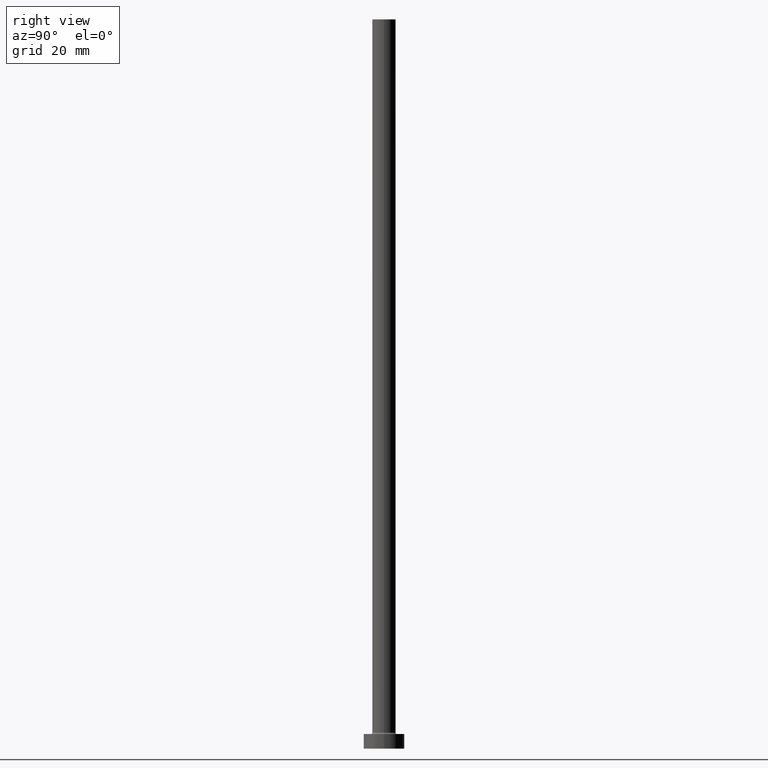
[diagram: clean part render]
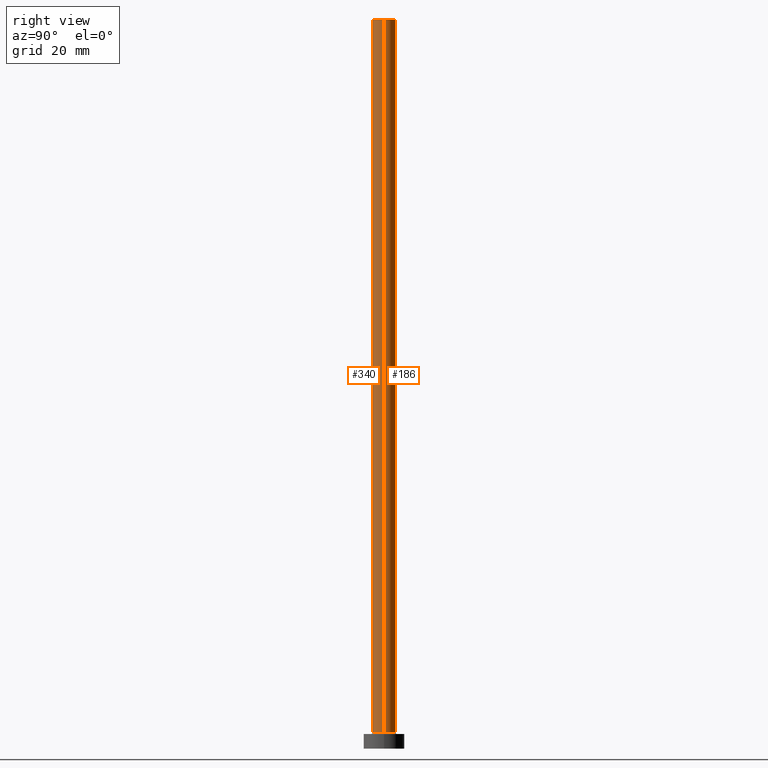
[diagram: same view with one multi-face feature highlighted, each face labeled with its STEP entity id]
A machine part, right view. The highlighted faces form ONE feature: a constant-radius fillet chain: 2 tangent blend faces with common blend radius 4 mm. The faces share edges in the B-rep.
Their STEP definitions:
[1] entity #340 (Cylinder):
#5 = VECTOR ( 'NONE', #163, 1000.000000000000000 ) ;
#12 = CIRCLE ( 'NONE', #436, 4.000000000000000000 ) ;
#21 = CARTESIAN_POINT ( 'NONE',  ( 4.000000000000000000, 4.898587196589412829E-16, 250.0000000000000000 ) ) ;
#22 = FACE_OUTER_BOUND ( 'NONE', #265, .T. ) ;
#65 = LINE ( 'NONE', #391, #243 ) ;
#67 = ORIENTED_EDGE ( 'NONE', *, *, #239, .F. ) ;
#87 = CARTESIAN_POINT ( 'NONE',  ( 0.000000000000000000, 0.000000000000000000, 250.0000000000000000 ) ) ;
#126 = DIRECTION ( 'NONE',  ( -1.000000000000000000, 0.000000000000000000, 0.000000000000000000 ) ) ;
#135 = AXIS2_PLACEMENT_3D ( 'NONE', #451, #165, #126 ) ;
#141 = VERTEX_POINT ( 'NONE', #276 ) ;
#163 = DIRECTION ( 'NONE',  ( -0.000000000000000000, -0.000000000000000000, -1.000000000000000000 ) ) ;
#165 = DIRECTION ( 'NONE',  ( -0.000000000000000000, -0.000000000000000000, -1.000000000000000000 ) ) ;
#177 = DIRECTION ( 'NONE',  ( -0.000000000000000000, -0.000000000000000000, -1.000000000000000000 ) ) ;
#183 = EDGE_CURVE ( 'NONE', #447, #284, #12, .T. ) ;
#184 = ORIENTED_EDGE ( 'NONE', *, *, #396, .T. ) ;
#193 = DIRECTION ( 'NONE',  ( 0.000000000000000000, 0.000000000000000000, 1.000000000000000000 ) ) ;
#196 = LINE ( 'NONE', #21, #5 ) ;
#205 = CARTESIAN_POINT ( 'NONE',  ( 4.000000000000000000, 4.898587196589412829E-16, 250.0000000000000000 ) ) ;
#239 = EDGE_CURVE ( 'NONE', #284, #417, #196, .T. ) ;
#242 = CIRCLE ( 'NONE', #303, 4.000000000000000000 ) ;
#243 = VECTOR ( 'NONE', #177, 1000.000000000000000 ) ;
#261 = EDGE_CURVE ( 'NONE', #141, #417, #242, .T. ) ;
#265 = EDGE_LOOP ( 'NONE', ( #67, #305, #184, #298 ) ) ;
#276 = CARTESIAN_POINT ( 'NONE',  ( -4.000000000000000000, 0.000000000000000000, 5.500000000000005329 ) ) ;
#278 = DIRECTION ( 'NONE',  ( 1.000000000000000000, 0.000000000000000000, 0.000000000000000000 ) ) ;
#281 = CARTESIAN_POINT ( 'NONE',  ( -4.000000000000000000, 0.000000000000000000, 250.0000000000000000 ) ) ;
#284 = VERTEX_POINT ( 'NONE', #205 ) ;
#298 = ORIENTED_EDGE ( 'NONE', *, *, #261, .T. ) ;
#303 = AXIS2_PLACEMENT_3D ( 'NONE', #443, #416, #381 ) ;
#305 = ORIENTED_EDGE ( 'NONE', *, *, #183, .F. ) ;
#340 = ADVANCED_FACE ( 'NONE', ( #22 ), #374, .T. ) ;
#368 = CARTESIAN_POINT ( 'NONE',  ( 4.000000000000000000, 4.898587196589412829E-16, 5.500000000000005329 ) ) ;
#374 = CYLINDRICAL_SURFACE ( 'NONE', #135, 4.000000000000000000 ) ;
#381 = DIRECTION ( 'NONE',  ( 1.000000000000000000, 0.000000000000000000, 0.000000000000000000 ) ) ;
#391 = CARTESIAN_POINT ( 'NONE',  ( -4.000000000000000000, 0.000000000000000000, 250.0000000000000000 ) ) ;
#396 = EDGE_CURVE ( 'NONE', #447, #141, #65, .T. ) ;
#416 = DIRECTION ( 'NONE',  ( 0.000000000000000000, 0.000000000000000000, 1.000000000000000000 ) ) ;
#417 = VERTEX_POINT ( 'NONE', #368 ) ;
#436 = AXIS2_PLACEMENT_3D ( 'NONE', #87, #193, #278 ) ;
#443 = CARTESIAN_POINT ( 'NONE',  ( 0.000000000000000000, 0.000000000000000000, 5.500000000000005329 ) ) ;
#447 = VERTEX_POINT ( 'NONE', #281 ) ;
#451 = CARTESIAN_POINT ( 'NONE',  ( 0.000000000000000000, 0.000000000000000000, 250.0000000000000000 ) ) ;
[2] entity #186 (Cylinder):
#5 = VECTOR ( 'NONE', #163, 1000.000000000000000 ) ;
#16 = EDGE_CURVE ( 'NONE', #417, #141, #400, .T. ) ;
#21 = CARTESIAN_POINT ( 'NONE',  ( 4.000000000000000000, 4.898587196589412829E-16, 250.0000000000000000 ) ) ;
#26 = AXIS2_PLACEMENT_3D ( 'NONE', #274, #63, #201 ) ;
#43 = CIRCLE ( 'NONE', #260, 4.000000000000000000 ) ;
#63 = DIRECTION ( 'NONE',  ( -0.000000000000000000, -0.000000000000000000, -1.000000000000000000 ) ) ;
#65 = LINE ( 'NONE', #391, #243 ) ;
#100 = DIRECTION ( 'NONE',  ( 1.000000000000000000, 0.000000000000000000, 0.000000000000000000 ) ) ;
#103 = DIRECTION ( 'NONE',  ( 0.000000000000000000, 0.000000000000000000, 1.000000000000000000 ) ) ;
#141 = VERTEX_POINT ( 'NONE', #276 ) ;
#163 = DIRECTION ( 'NONE',  ( -0.000000000000000000, -0.000000000000000000, -1.000000000000000000 ) ) ;
#177 = DIRECTION ( 'NONE',  ( -0.000000000000000000, -0.000000000000000000, -1.000000000000000000 ) ) ;
#186 = ADVANCED_FACE ( 'NONE', ( #230 ), #237, .T. ) ;
#190 = AXIS2_PLACEMENT_3D ( 'NONE', #418, #458, #100 ) ;
#196 = LINE ( 'NONE', #21, #5 ) ;
#198 = ORIENTED_EDGE ( 'NONE', *, *, #396, .F. ) ;
#201 = DIRECTION ( 'NONE',  ( -1.000000000000000000, 0.000000000000000000, 0.000000000000000000 ) ) ;
#202 = ORIENTED_EDGE ( 'NONE', *, *, #401, .F. ) ;
#205 = CARTESIAN_POINT ( 'NONE',  ( 4.000000000000000000, 4.898587196589412829E-16, 250.0000000000000000 ) ) ;
#230 = FACE_OUTER_BOUND ( 'NONE', #412, .T. ) ;
#237 = CYLINDRICAL_SURFACE ( 'NONE', #26, 4.000000000000000000 ) ;
#239 = EDGE_CURVE ( 'NONE', #284, #417, #196, .T. ) ;
#243 = VECTOR ( 'NONE', #177, 1000.000000000000000 ) ;
#255 = DIRECTION ( 'NONE',  ( 1.000000000000000000, 0.000000000000000000, 0.000000000000000000 ) ) ;
#260 = AXIS2_PLACEMENT_3D ( 'NONE', #423, #103, #255 ) ;
#274 = CARTESIAN_POINT ( 'NONE',  ( 0.000000000000000000, 0.000000000000000000, 250.0000000000000000 ) ) ;
#276 = CARTESIAN_POINT ( 'NONE',  ( -4.000000000000000000, 0.000000000000000000, 5.500000000000005329 ) ) ;
#281 = CARTESIAN_POINT ( 'NONE',  ( -4.000000000000000000, 0.000000000000000000, 250.0000000000000000 ) ) ;
#284 = VERTEX_POINT ( 'NONE', #205 ) ;
#345 = ORIENTED_EDGE ( 'NONE', *, *, #16, .T. ) ;
#368 = CARTESIAN_POINT ( 'NONE',  ( 4.000000000000000000, 4.898587196589412829E-16, 5.500000000000005329 ) ) ;
#391 = CARTESIAN_POINT ( 'NONE',  ( -4.000000000000000000, 0.000000000000000000, 250.0000000000000000 ) ) ;
#396 = EDGE_CURVE ( 'NONE', #447, #141, #65, .T. ) ;
#400 = CIRCLE ( 'NONE', #190, 4.000000000000000000 ) ;
#401 = EDGE_CURVE ( 'NONE', #284, #447, #43, .T. ) ;
#412 = EDGE_LOOP ( 'NONE', ( #202, #441, #345, #198 ) ) ;
#417 = VERTEX_POINT ( 'NONE', #368 ) ;
#418 = CARTESIAN_POINT ( 'NONE',  ( 0.000000000000000000, 0.000000000000000000, 5.500000000000005329 ) ) ;
#423 = CARTESIAN_POINT ( 'NONE',  ( 0.000000000000000000, 0.000000000000000000, 250.0000000000000000 ) ) ;
#441 = ORIENTED_EDGE ( 'NONE', *, *, #239, .T. ) ;
#447 = VERTEX_POINT ( 'NONE', #281 ) ;
#458 = DIRECTION ( 'NONE',  ( 0.000000000000000000, 0.000000000000000000, 1.000000000000000000 ) ) ;